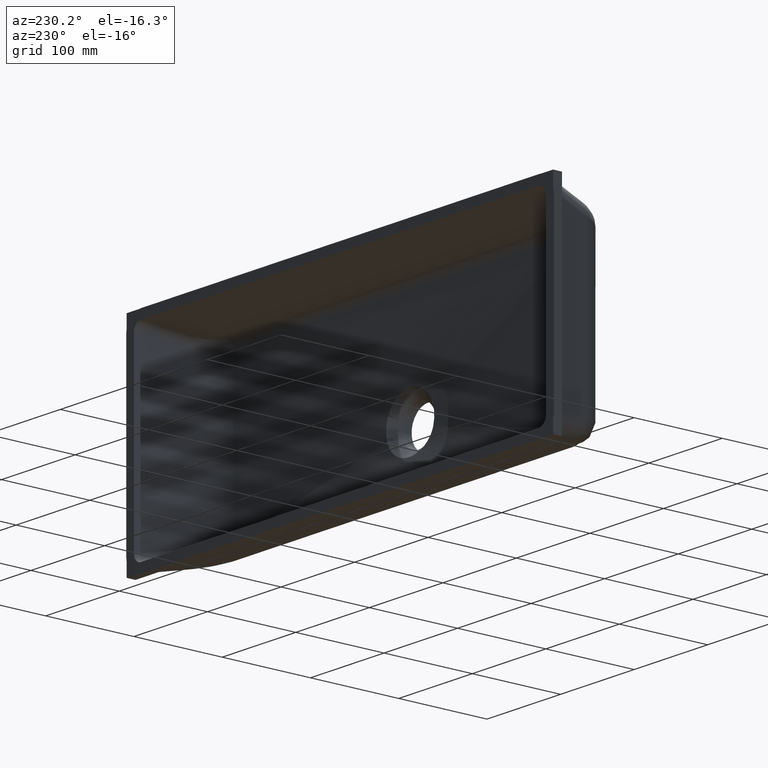
[diagram: clean part render]
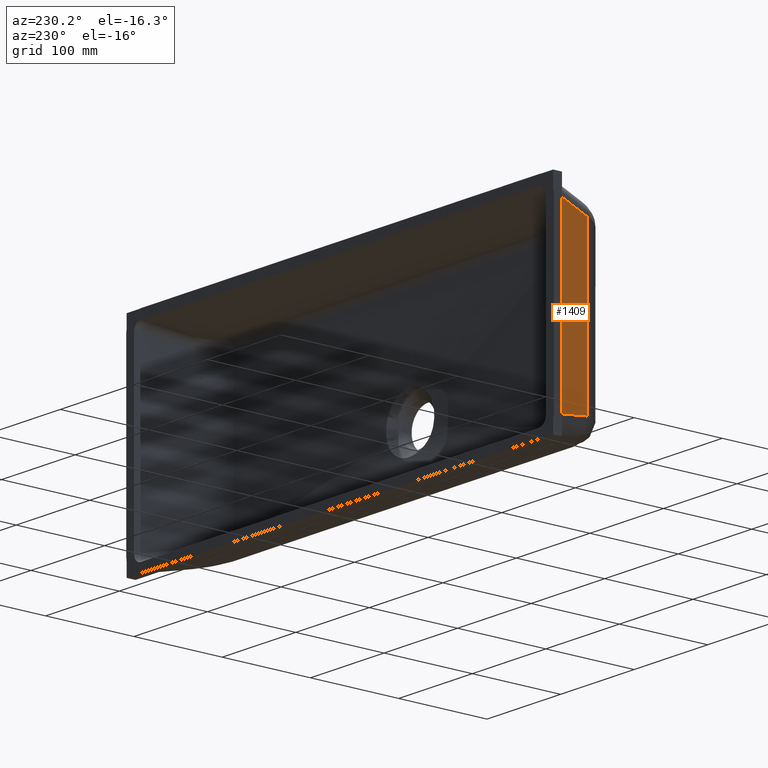
[diagram: same view with one face highlighted and labeled with its STEP entity id]
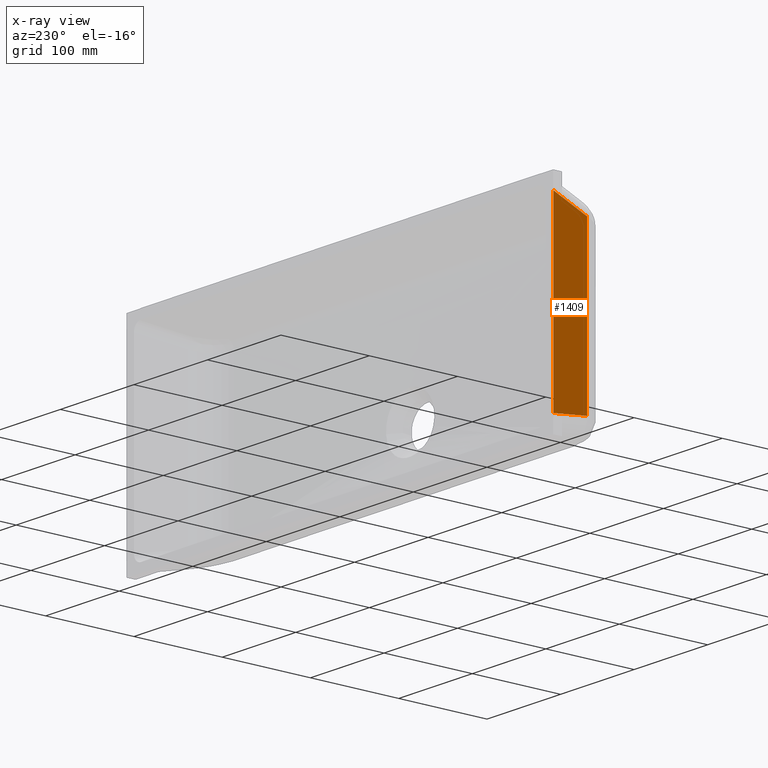
[diagram: x-ray of the same camera — body ghosted, the highlighted face saturated]
A machine part, auxiliary view. The second image highlights one B-rep face of the part: STEP entity #1409.
The next image is the same camera in x-ray: the body ghosted, the highlighted face saturated — about 0% of this face is hidden behind the body in this view.
In plain terms, the highlighted planar face has unit normal (-0.9556, -0.2945, -0).
Its self-contained STEP definition (entity closure, byte-faithful):
#85 = VERTEX_POINT ( 'NONE', #4630 ) ;
#87 = PLANE ( 'NONE',  #5373 ) ;
#139 = VECTOR ( 'NONE', #4101, 1000.000000000000000 ) ;
#552 = VECTOR ( 'NONE', #4770, 1000.000000000000000 ) ;
#565 = LINE ( 'NONE', #5972, #552 ) ;
#760 = EDGE_LOOP ( 'NONE', ( #5625, #1638, #1901, #5445 ) ) ;
#1350 = LINE ( 'NONE', #2127, #3440 ) ;
#1384 = VERTEX_POINT ( 'NONE', #6289 ) ;
#1409 = ADVANCED_FACE ( 'NONE', ( #5582 ), #87, .T. ) ;
#1576 = VERTEX_POINT ( 'NONE', #1650 ) ;
#1638 = ORIENTED_EDGE ( 'NONE', *, *, #2672, .T. ) ;
#1650 = CARTESIAN_POINT ( 'NONE',  ( -290.4642202850363300, 0.0000000000000000000, -101.0015355408753500 ) ) ;
#1673 = CARTESIAN_POINT ( 'NONE',  ( -243.3109626200313200, -152.9861248686825700, 69.56603043087211800 ) ) ;
#1901 = ORIENTED_EDGE ( 'NONE', *, *, #4063, .T. ) ;
#2127 = CARTESIAN_POINT ( 'NONE',  ( -277.8392411563955300, -40.96104339514562300, -92.58488278844814100 ) ) ;
#2437 = VERTEX_POINT ( 'NONE', #6495 ) ;
#2556 = DIRECTION ( 'NONE',  ( 0.2890262232899780700, -0.9377295244519255900, 0.1926841488599853000 ) ) ;
#2672 = EDGE_CURVE ( 'NONE', #1384, #2437, #565, .T. ) ;
#3440 = VECTOR ( 'NONE', #2556, 1000.000000000000200 ) ;
#3952 = LINE ( 'NONE', #1673, #6427 ) ;
#4063 = EDGE_CURVE ( 'NONE', #2437, #85, #3952, .T. ) ;
#4101 = DIRECTION ( 'NONE',  ( 0.0000000000000000000, 0.0000000000000000000, 1.000000000000000000 ) ) ;
#4380 = CARTESIAN_POINT ( 'NONE',  ( -289.5563737455908600, -2.945457661312240700, 109.9999999999999700 ) ) ;
#4630 = CARTESIAN_POINT ( 'NONE',  ( -290.4642202850363900, 0.0000000000000000000, 101.0015355408753000 ) ) ;
#4770 = DIRECTION ( 'NONE',  ( -0.0000000000000000000, -0.0000000000000000000, 1.000000000000000000 ) ) ;
#5127 = CARTESIAN_POINT ( 'NONE',  ( -290.4642202850363900, 0.0000000000000000000, 109.9999999999999700 ) ) ;
#5373 = AXIS2_PLACEMENT_3D ( 'NONE', #4380, #6313, #6282 ) ;
#5445 = ORIENTED_EDGE ( 'NONE', *, *, #6494, .F. ) ;
#5582 = FACE_OUTER_BOUND ( 'NONE', #760, .T. ) ;
#5625 = ORIENTED_EDGE ( 'NONE', *, *, #6803, .T. ) ;
#5767 = LINE ( 'NONE', #5127, #139 ) ;
#5972 = CARTESIAN_POINT ( 'NONE',  ( -274.6665820904080400, -51.25455947590506900, 109.9999999999999700 ) ) ;
#6282 = DIRECTION ( 'NONE',  ( 0.0000000000000000000, 0.0000000000000000000, -1.000000000000000000 ) ) ;
#6289 = CARTESIAN_POINT ( 'NONE',  ( -274.6665820904079900, -51.25455947590508300, -90.46977674445648200 ) ) ;
#6313 = DIRECTION ( 'NONE',  ( -0.9556373745590794900, -0.2945457661312241300, -0.0000000000000000000 ) ) ;
#6427 = VECTOR ( 'NONE', #7109, 1000.000000000000200 ) ;
#6494 = EDGE_CURVE ( 'NONE', #1576, #85, #5767, .T. ) ;
#6495 = CARTESIAN_POINT ( 'NONE',  ( -274.6665820904080400, -51.25455947590506200, 90.46977674445646800 ) ) ;
#6803 = EDGE_CURVE ( 'NONE', #1576, #1384, #1350, .T. ) ;
#7109 = DIRECTION ( 'NONE',  ( -0.2890262232899781200, 0.9377295244519258100, 0.1926841488599842500 ) ) ;